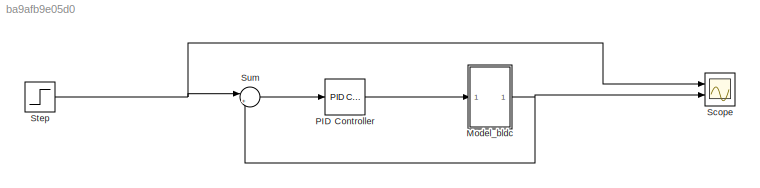
MODEL slx_ba9afb9e05d0
KIND model
CONFIG AbsTol = auto
CONFIG EnableMultiTasking = off
CONFIG FixedStep = auto
CONFIG MaxStep = auto
CONFIG MinStep = auto
CONFIG RelTol = 1e-3
CONFIG SampleTimeConstraint = Unconstrained
CONFIG Solver = VariableStepAuto
CONFIG SolverName = VariableStepAuto
CONFIG StartTime = 0.0
CONFIG StopTime = 3
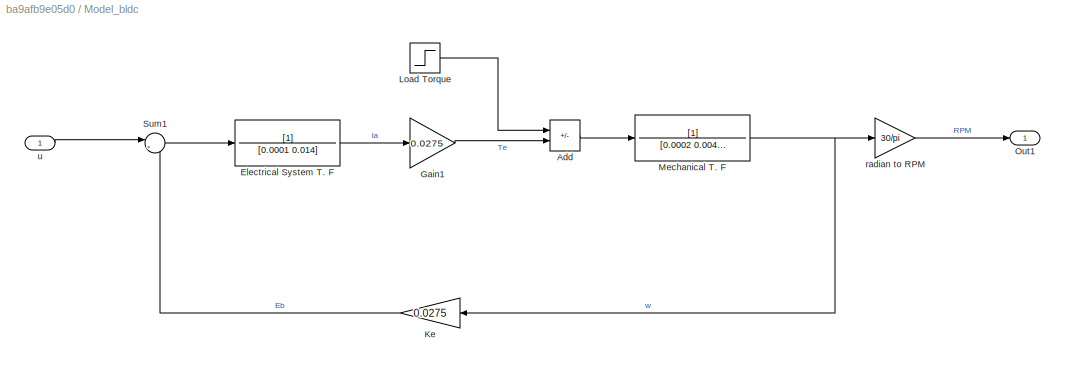
BLOCK [SubSystem] Model_bldc
  Ports = [1, 1]
  RequestExecContextInheritance = off
BLOCK [Sum] Model_bldc/Add
  IconShape = rectangular
  Inputs = -+
  Ports = [2, 1]
BLOCK [TransferFcn] Model_bldc/Electrical System T. F
  Denominator = [0.0001 0.014]
BLOCK [Gain] Model_bldc/Gain1
  Gain = 0.0275
BLOCK [Gain] Model_bldc/Ke
  Gain = 0.0275
  NameLocation = top
BLOCK [Step] Model_bldc/Load Torque
  After = 10
  SampleTime = 0
BLOCK [TransferFcn] Model_bldc/Mechanical T. F
  Denominator = [0.0002 0.004586]
BLOCK [Outport] Model_bldc/Out1
BLOCK [Sum] Model_bldc/Sum1
  Inputs = |+-
  Ports = [2, 1]
BLOCK [Gain] Model_bldc/radian to RPM
  Gain = 30/pi
  NameLocation = top
BLOCK [Inport] Model_bldc/u
BLOCK [Reference] PID Controller  REF=simulink/Continuous/PID Controller
  Ports = [1, 1]
  SourceBlock = simulink/Continuous/PID Controller
  SourceProductBaseCode = SL
  SourceType = PID 1dof
BLOCK [Scope] Scope
  Floating = off
  NumInputPorts = 2
  Ports = [2]
  ScopeSpecificationString = Simulink.scopes.TimeScopeBlockCfg('CurrentConfiguration', extmgr.ConfigurationSet(extmgr.Configuration('Core','General UI',true),extmgr.Configuration('Core','Source UI',true),extmgr.Configuration('Sources','WiredSimulink',true),extmgr.Configuration('Visuals','Time Domain',true,'SerializedDisplays',{struct('MinYLimReal','-11682272775990071106047729526834149046990109294818349565065495244348121357396...<+3787ch>
BLOCK [Step] Step
  After = 1500
  SampleTime = 0
BLOCK [Sum] Sum
  Inputs = |++
  Ports = [2, 1]
LINE Model_bldc/Add:1 -> Model_bldc/Mechanical T. F:1
LINE Model_bldc/Electrical System T. F:1 -> Model_bldc/Gain1:1
LINE Model_bldc/Gain1:1 -> Model_bldc/Add:2
LINE Model_bldc/Ke:1 -> Model_bldc/Sum1:2
LINE Model_bldc/Load Torque:1 -> Model_bldc/Add:1
NET Model_bldc/Mechanical T. F:1 -> Model_bldc/Ke:1, Model_bldc/radian to RPM:1
LINE Model_bldc/Sum1:1 -> Model_bldc/Electrical System T. F:1
LINE Model_bldc/radian to RPM:1 -> Model_bldc/Out1:1
LINE Model_bldc/u:1 -> Model_bldc/Sum1:1
NET Model_bldc:1 -> Scope:2, Sum:2
LINE PID Controller:1 -> Model_bldc:1
NET Step:1 -> Scope:1, Sum:1
LINE Sum:1 -> PID Controller:1
note: NET lines group one-source signal fan-out (src -> all destinations, sorted); 1:1 wires keep LINE
